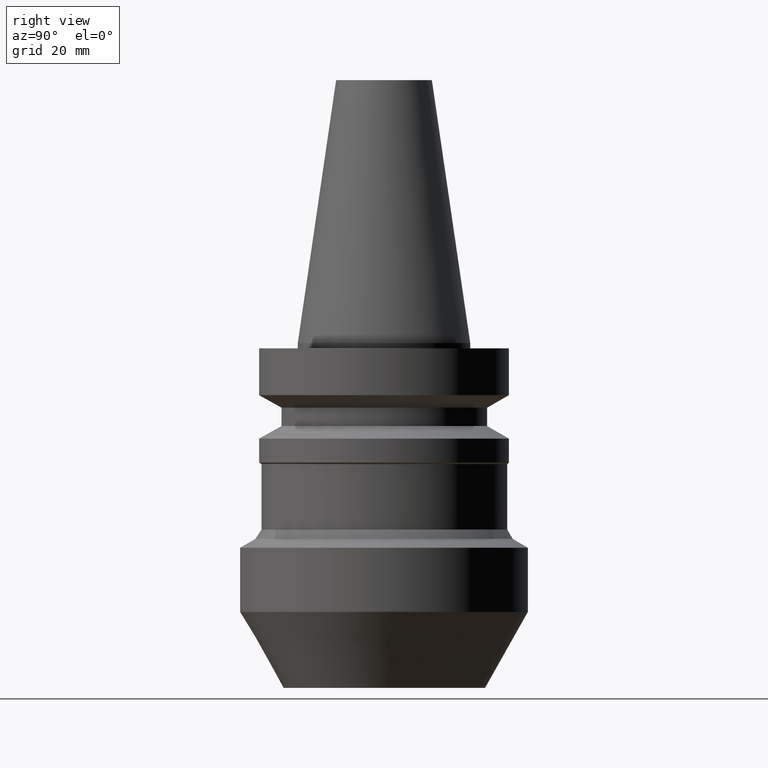
[diagram: clean part render]
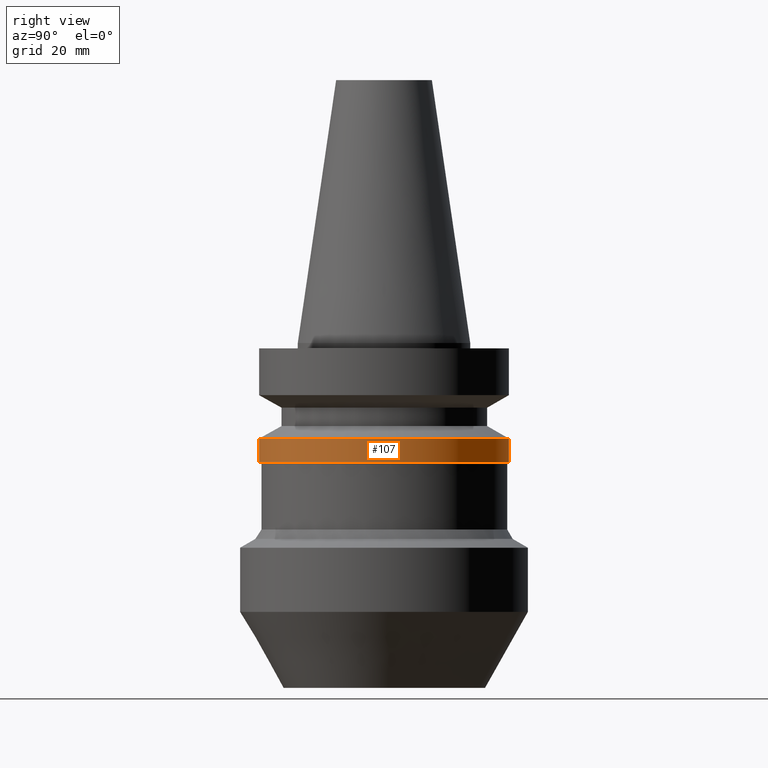
[diagram: same view with one face highlighted and labeled with its STEP entity id]
A machine part, right view. The second image highlights one B-rep face of the part: STEP entity #107.
In plain terms, the highlighted cylindrical surface (bore or boss wall) has radius 23 mm, axis along (0, 0, -1).
Its self-contained STEP definition (entity closure, byte-faithful):
#98=EDGE_CURVE('Unnamed[1]',#218,#218,#219,.T.);
#100=EDGE_CURVE('Unnamed[1]',#221,#221,#222,.T.);
#107=ADVANCED_FACE('Unnamed[1]',(#231,#232),#233,.T.);
#218=VERTEX_POINT('',#366);
#219=CIRCLE('',#367,23.0);
#221=VERTEX_POINT('',#370);
#222=CIRCLE('',#371,23.0);
#231=FACE_BOUND('',#383,.T.);
#232=FACE_BOUND('',#384,.T.);
#233=CYLINDRICAL_SURFACE('',#385,23.0);
#366=CARTESIAN_POINT('',(1.07768918324967E-015,23.0,-17.6));
#367=AXIS2_PLACEMENT_3D('',#514,#515,#516);
#370=CARTESIAN_POINT('',(1.34711147906215E-015,23.0,-22.0000000000009));
#371=AXIS2_PLACEMENT_3D('',#517,#518,#519);
#383=EDGE_LOOP('',(#527));
#384=EDGE_LOOP('',(#528));
#385=AXIS2_PLACEMENT_3D('',#529,#530,#531);
#514=CARTESIAN_POINT('',(1.07768918324967E-015,2.15537836649934E-015,-17.6));
#515=DIRECTION('',(6.12323399573677E-017,1.22464679914735E-016,-1.0));
#516=DIRECTION('',(-1.23259516440783E-032,1.0,1.22464679914735E-016));
#517=CARTESIAN_POINT('',(1.34711147906215E-015,2.69422295812429E-015,-22.0000000000009));
#518=DIRECTION('',(6.12323399573677E-017,1.22464679914735E-016,-1.0));
#519=DIRECTION('',(-1.23259516440783E-032,1.0,1.22464679914735E-016));
#527=ORIENTED_EDGE('',*,*,#100,.F.);
#528=ORIENTED_EDGE('',*,*,#98,.T.);
#529=CARTESIAN_POINT('',(1.21240033115591E-015,2.42480066231182E-015,-19.8000000000005));
#530=DIRECTION('',(6.12323399573677E-017,1.22464679914735E-016,-1.0));
#531=DIRECTION('',(-1.23259516440783E-032,1.0,1.22464679914735E-016));